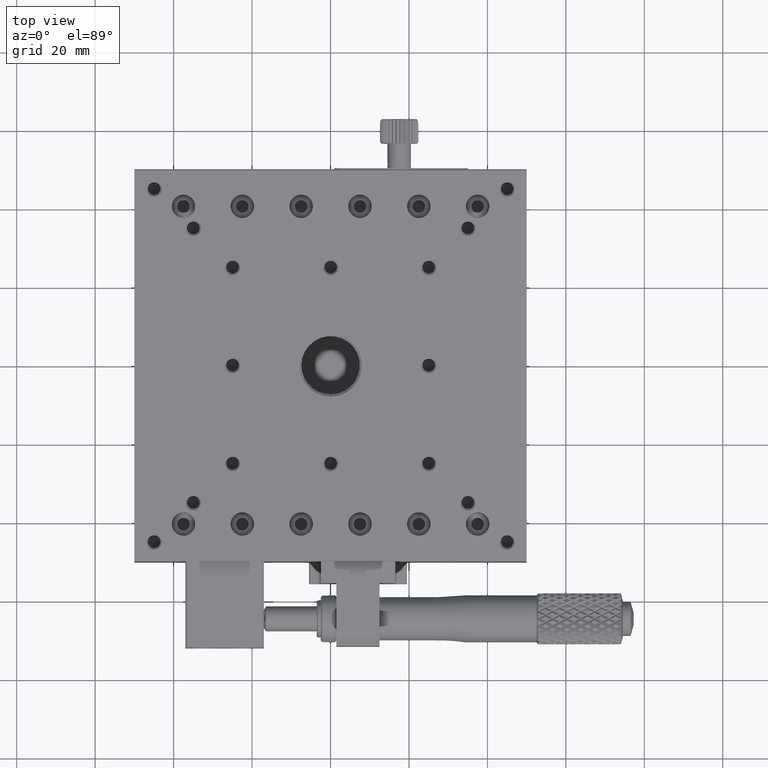
[diagram: clean part render]
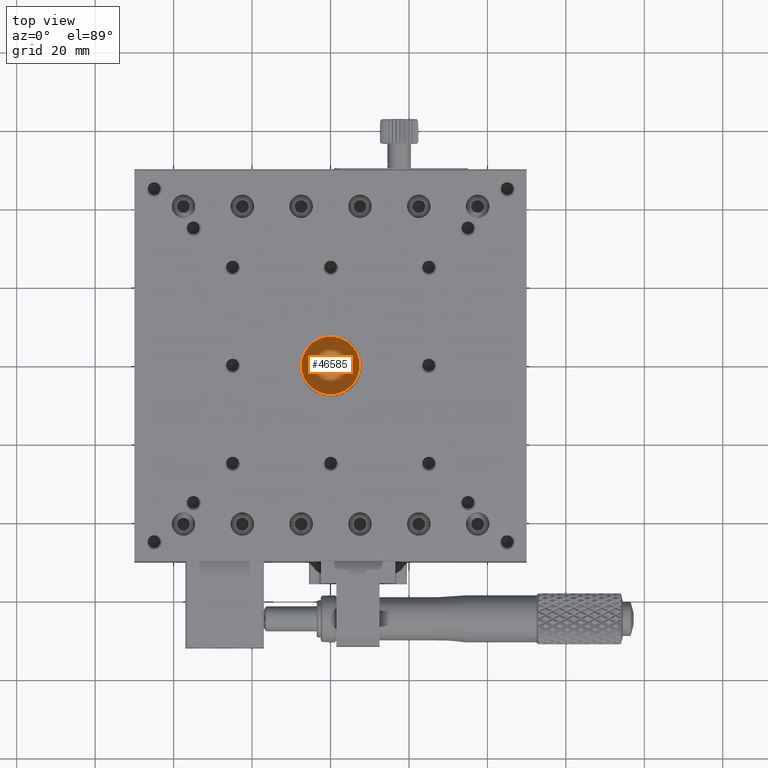
[diagram: same view with one face highlighted and labeled with its STEP entity id]
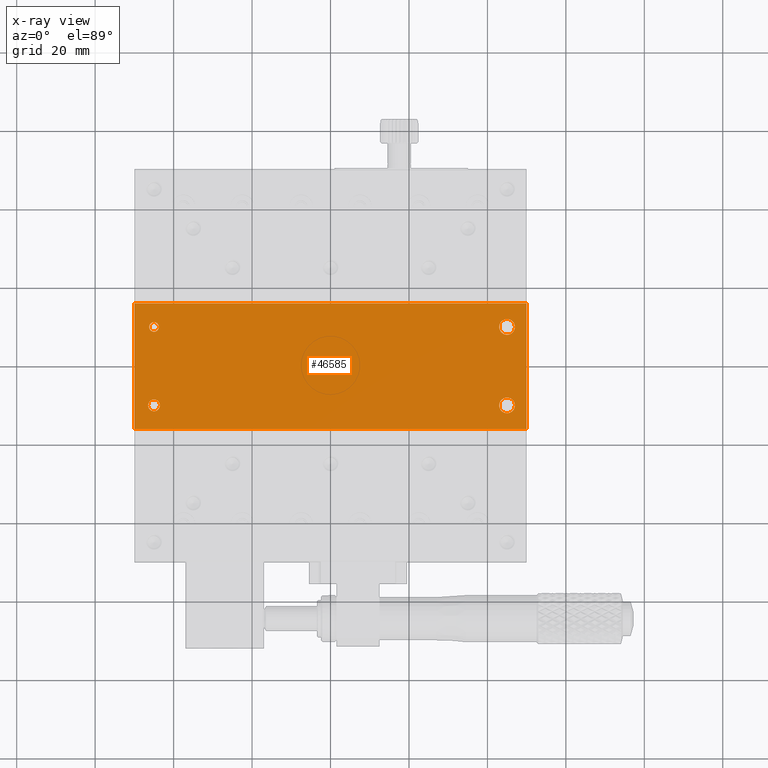
[diagram: x-ray of the same camera — body ghosted, the highlighted face saturated]
A machine part, top view. The second image highlights one B-rep face of the part: STEP entity #46585.
The next image is the same camera in x-ray: the body ghosted, the highlighted face saturated — about 0% of this face is hidden behind the body in this view.
In plain terms, the highlighted planar face has unit normal (0, 0, -1).
Its self-contained STEP definition (entity closure, byte-faithful):
#560 = VECTOR ( 'NONE', #57548, 1000.000000000000000 ) ;
#1649 = VERTEX_POINT ( 'NONE', #76003 ) ;
#2500 = LINE ( 'NONE', #40441, #43530 ) ;
#4593 = CARTESIAN_POINT ( 'NONE',  ( -50.00000000000000000, 16.00000000000000000, 6.000000000000021316 ) ) ;
#4728 = EDGE_LOOP ( 'NONE', ( #42974 ) ) ;
#6930 = LINE ( 'NONE', #76792, #28389 ) ;
#7818 = FACE_BOUND ( 'NONE', #4728, .T. ) ;
#7925 = EDGE_LOOP ( 'NONE', ( #40163 ) ) ;
#8896 = VERTEX_POINT ( 'NONE', #77515 ) ;
#11603 = VERTEX_POINT ( 'NONE', #43014 ) ;
#11760 = LINE ( 'NONE', #78774, #12996 ) ;
#11884 = CARTESIAN_POINT ( 'NONE',  ( 50.00000000000000000, 16.00000000000000000, 6.000000000000021316 ) ) ;
#11995 = EDGE_CURVE ( 'NONE', #73092, #38458, #2500, .T. ) ;
#12996 = VECTOR ( 'NONE', #30113, 1000.000000000000000 ) ;
#13002 = EDGE_CURVE ( 'NONE', #38458, #16917, #62861, .T. ) ;
#13455 = CIRCLE ( 'NONE', #73425, 1.500000000023649083 ) ;
#14229 = AXIS2_PLACEMENT_3D ( 'NONE', #32738, #32331, #51535 ) ;
#15843 = EDGE_CURVE ( 'NONE', #1649, #1649, #41089, .T. ) ;
#15929 = VERTEX_POINT ( 'NONE', #33455 ) ;
#16344 = AXIS2_PLACEMENT_3D ( 'NONE', #59565, #21231, #20833 ) ;
#16917 = VERTEX_POINT ( 'NONE', #4593 ) ;
#17605 = ORIENTED_EDGE ( 'NONE', *, *, #13002, .T. ) ;
#20242 = CIRCLE ( 'NONE', #63213, 2.000000000000000000 ) ;
#20336 = EDGE_CURVE ( 'NONE', #70261, #70261, #13455, .T. ) ;
#20506 = DIRECTION ( 'NONE',  ( 0.000000000000000000, 0.000000000000000000, -1.000000000000000000 ) ) ;
#20684 = DIRECTION ( 'NONE',  ( 0.000000000000000000, 0.000000000000000000, 1.000000000000000000 ) ) ;
#20833 = DIRECTION ( 'NONE',  ( 0.000000000000000000, 1.000000000000000000, 0.000000000000000000 ) ) ;
#20912 = DIRECTION ( 'NONE',  ( 0.000000000000000000, 1.000000000000000000, 0.000000000000000000 ) ) ;
#21231 = DIRECTION ( 'NONE',  ( -0.000000000000000000, -0.000000000000000000, 1.000000000000000000 ) ) ;
#23170 = CARTESIAN_POINT ( 'NONE',  ( 50.00000000000000000, -16.00000000000000000, 6.000000000000021316 ) ) ;
#25033 = ORIENTED_EDGE ( 'NONE', *, *, #42512, .F. ) ;
#25744 = CARTESIAN_POINT ( 'NONE',  ( 50.00000000000000000, 16.00000000000000000, 6.000000000000021316 ) ) ;
#28161 = DIRECTION ( 'NONE',  ( -1.000000000000000000, -0.000000000000000000, -0.000000000000000000 ) ) ;
#28389 = VECTOR ( 'NONE', #28161, 1000.000000000000000 ) ;
#28572 = CIRCLE ( 'NONE', #14229, 2.000000000000000000 ) ;
#30113 = DIRECTION ( 'NONE',  ( 0.000000000000000000, 1.000000000000000000, 0.000000000000000000 ) ) ;
#31503 = DIRECTION ( 'NONE',  ( 0.000000000000000000, 1.000000000000000000, 0.000000000000000000 ) ) ;
#32331 = DIRECTION ( 'NONE',  ( -0.000000000000000000, -0.000000000000000000, 1.000000000000000000 ) ) ;
#32731 = PLANE ( 'NONE',  #67861 ) ;
#32738 = CARTESIAN_POINT ( 'NONE',  ( 45.00000000000000000, -9.999999999999994671, 6.000000000000018652 ) ) ;
#33455 = CARTESIAN_POINT ( 'NONE',  ( -50.00000000000000000, -16.00000000000000000, 6.000000000000021316 ) ) ;
#33719 = CARTESIAN_POINT ( 'NONE',  ( -45.00000000000000711, -9.999999999999994671, 5.999999999924703786 ) ) ;
#36969 = CARTESIAN_POINT ( 'NONE',  ( 45.00000000000000000, 10.00000000000000178, 6.000000000000018652 ) ) ;
#37310 = EDGE_CURVE ( 'NONE', #73092, #15929, #6930, .T. ) ;
#37423 = EDGE_LOOP ( 'NONE', ( #25033 ) ) ;
#38018 = FACE_BOUND ( 'NONE', #37423, .T. ) ;
#38458 = VERTEX_POINT ( 'NONE', #11884 ) ;
#40163 = ORIENTED_EDGE ( 'NONE', *, *, #15843, .F. ) ;
#40441 = CARTESIAN_POINT ( 'NONE',  ( 50.00000000000000000, 50.00000000000000000, 6.000000000000021316 ) ) ;
#40643 = ORIENTED_EDGE ( 'NONE', *, *, #11995, .T. ) ;
#41089 = CIRCLE ( 'NONE', #16344, 1.229499999999999593 ) ;
#42512 = EDGE_CURVE ( 'NONE', #8896, #8896, #28572, .T. ) ;
#42974 = ORIENTED_EDGE ( 'NONE', *, *, #20336, .F. ) ;
#43014 = CARTESIAN_POINT ( 'NONE',  ( 45.00000000000000000, 12.00000000000000178, 6.000000000000018652 ) ) ;
#43530 = VECTOR ( 'NONE', #20912, 1000.000000000000000 ) ;
#44508 = EDGE_CURVE ( 'NONE', #15929, #16917, #11760, .T. ) ;
#46585 = ADVANCED_FACE ( 'NONE', ( #75239, #70301, #7818, #49899, #38018 ), #32731, .F. ) ;
#49899 = FACE_BOUND ( 'NONE', #62079, .T. ) ;
#50863 = DIRECTION ( 'NONE',  ( 0.000000000000000000, 1.000000000000000000, 0.000000000000000000 ) ) ;
#51535 = DIRECTION ( 'NONE',  ( 0.000000000000000000, 1.000000000000000000, 0.000000000000000000 ) ) ;
#52910 = ORIENTED_EDGE ( 'NONE', *, *, #37310, .F. ) ;
#55986 = CARTESIAN_POINT ( 'NONE',  ( -45.00000000000000711, -11.50000000002364331, 5.999999999924703786 ) ) ;
#57548 = DIRECTION ( 'NONE',  ( -1.000000000000000000, -0.000000000000000000, -0.000000000000000000 ) ) ;
#59565 = CARTESIAN_POINT ( 'NONE',  ( -45.00000000000000711, 10.00000000000000178, 6.000000000000008882 ) ) ;
#61887 = DIRECTION ( 'NONE',  ( -0.000000000000000000, -0.000000000000000000, 1.000000000000000000 ) ) ;
#62079 = EDGE_LOOP ( 'NONE', ( #70015 ) ) ;
#62861 = LINE ( 'NONE', #25744, #560 ) ;
#63213 = AXIS2_PLACEMENT_3D ( 'NONE', #36969, #61887, #50863 ) ;
#64335 = DIRECTION ( 'NONE',  ( 0.000000000000000000, -1.000000000000000000, 0.000000000000000000 ) ) ;
#67861 = AXIS2_PLACEMENT_3D ( 'NONE', #68669, #20506, #31503 ) ;
#68669 = CARTESIAN_POINT ( 'NONE',  ( 50.00000000000000000, 16.00000000000000000, 6.000000000000021316 ) ) ;
#69622 = EDGE_LOOP ( 'NONE', ( #52910, #40643, #17605, #70723 ) ) ;
#70015 = ORIENTED_EDGE ( 'NONE', *, *, #72564, .F. ) ;
#70261 = VERTEX_POINT ( 'NONE', #55986 ) ;
#70301 = FACE_BOUND ( 'NONE', #7925, .T. ) ;
#70723 = ORIENTED_EDGE ( 'NONE', *, *, #44508, .F. ) ;
#72564 = EDGE_CURVE ( 'NONE', #11603, #11603, #20242, .T. ) ;
#73092 = VERTEX_POINT ( 'NONE', #23170 ) ;
#73425 = AXIS2_PLACEMENT_3D ( 'NONE', #33719, #20684, #64335 ) ;
#75239 = FACE_OUTER_BOUND ( 'NONE', #69622, .T. ) ;
#76003 = CARTESIAN_POINT ( 'NONE',  ( -45.00000000000000711, 11.22950000000000159, 6.000000000000008882 ) ) ;
#76792 = CARTESIAN_POINT ( 'NONE',  ( 50.00000000000000000, -16.00000000000000000, 6.000000000000021316 ) ) ;
#77515 = CARTESIAN_POINT ( 'NONE',  ( 45.00000000000000000, -7.999999999999994671, 6.000000000000018652 ) ) ;
#78774 = CARTESIAN_POINT ( 'NONE',  ( -50.00000000000000000, 50.00000000000000000, 6.000000000000021316 ) ) ;